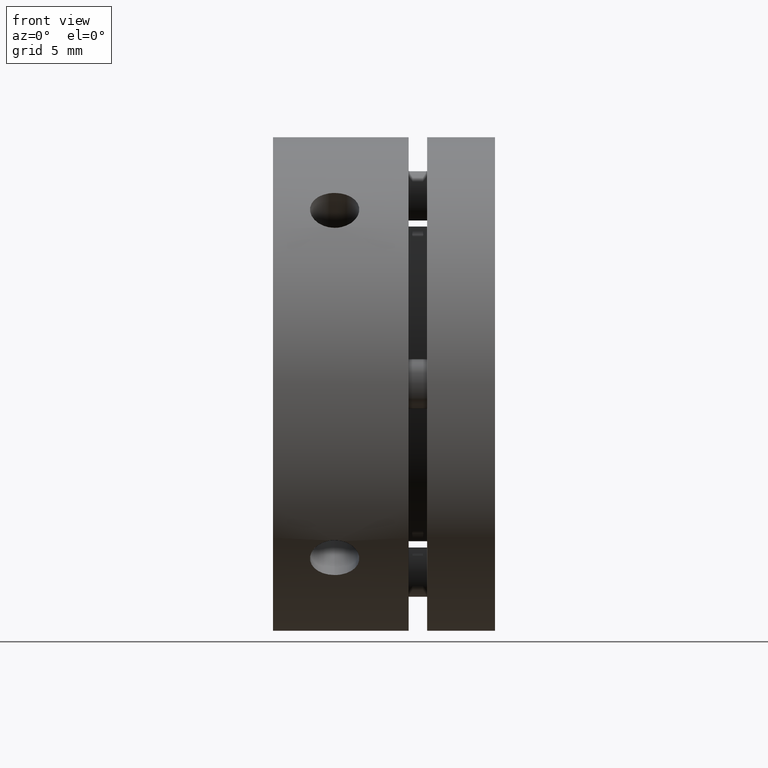
[diagram: clean part render]
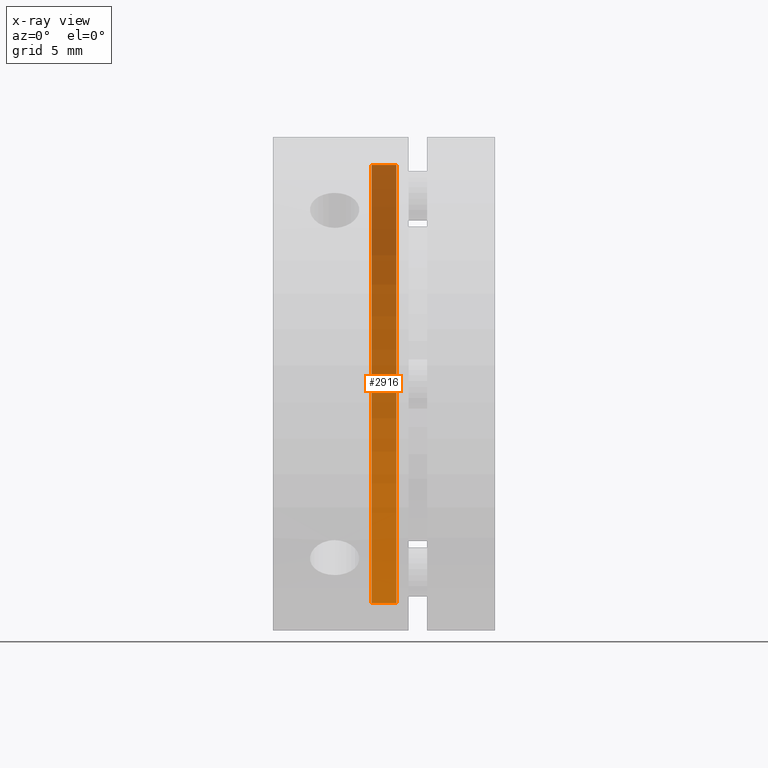
[diagram: x-ray — body ghosted, one internal face saturated and labeled with its STEP entity id]
A machine part, front view, then the same camera in x-ray: the body is ghosted and one INTERNAL B-rep face — a face not visible from any outside direction — is saturated and labeled: STEP entity #2916.
In plain terms, the highlighted cylindrical surface (partial cylindrical patch) has radius 17.75 mm, axis along (-1, 0, 0).
Its self-contained STEP definition (entity closure, byte-faithful):
#95 = CARTESIAN_POINT ( 'NONE',  ( 9.000000000000014200, 0.0000000000000000000, 0.0000000000000000000 ) ) ;
#96 = DIRECTION ( 'NONE',  ( 0.0000000000000000000, 0.0000000000000000000, 1.000000000000000000 ) ) ;
#97 = DIRECTION ( 'NONE',  ( -1.000000000000000000, 0.0000000000000000000, 0.0000000000000000000 ) ) ;
#230 = VERTEX_POINT ( 'NONE', #3264 ) ;
#232 = VERTEX_POINT ( 'NONE', #3260 ) ;
#234 = VERTEX_POINT ( 'NONE', #3250 ) ;
#247 = VERTEX_POINT ( 'NONE', #3274 ) ;
#416 = ORIENTED_EDGE ( 'NONE', *, *, #2232, .T. ) ;
#432 = ORIENTED_EDGE ( 'NONE', *, *, #623, .T. ) ;
#484 = ORIENTED_EDGE ( 'NONE', *, *, #624, .T. ) ;
#623 = EDGE_CURVE ( 'NONE', #247, #232, #2067, .T. ) ;
#624 = EDGE_CURVE ( 'NONE', #230, #234, #2068, .T. ) ;
#1732 = LINE ( 'NONE', #2118, #1734 ) ;
#1734 = VECTOR ( 'NONE', #2117, 1000.000000000000000 ) ;
#1736 = LINE ( 'NONE', #2096, #1739 ) ;
#1739 = VECTOR ( 'NONE', #2094, 1000.000000000000000 ) ;
#1781 = FACE_OUTER_BOUND ( 'NONE', #1955, .T. ) ;
#1790 = CYLINDRICAL_SURFACE ( 'NONE', #2377, 17.75000000000000400 ) ;
#1955 = EDGE_LOOP ( 'NONE', ( #3138, #432, #416, #484 ) ) ;
#2067 = CIRCLE ( 'NONE', #2272, 17.75000000000000400 ) ;
#2068 = CIRCLE ( 'NONE', #2273, 17.75000000000000400 ) ;
#2094 = DIRECTION ( 'NONE',  ( -1.000000000000000000, 0.0000000000000000000, 0.0000000000000000000 ) ) ;
#2096 = CARTESIAN_POINT ( 'NONE',  ( 9.000000000000014200, 2.173748068486552000E-015, -17.75000000000000400 ) ) ;
#2117 = DIRECTION ( 'NONE',  ( -1.000000000000000000, 0.0000000000000000000, 0.0000000000000000000 ) ) ;
#2118 = CARTESIAN_POINT ( 'NONE',  ( 9.000000000000014200, 0.0000000000000000000, 17.75000000000000400 ) ) ;
#2232 = EDGE_CURVE ( 'NONE', #232, #230, #1732, .T. ) ;
#2235 = EDGE_CURVE ( 'NONE', #247, #234, #1736, .T. ) ;
#2272 = AXIS2_PLACEMENT_3D ( 'NONE', #3456, #3457, #3459 ) ;
#2273 = AXIS2_PLACEMENT_3D ( 'NONE', #3461, #3462, #3463 ) ;
#2377 = AXIS2_PLACEMENT_3D ( 'NONE', #95, #97, #96 ) ;
#2916 = ADVANCED_FACE ( 'NONE', ( #1781 ), #1790, .F. ) ;
#3138 = ORIENTED_EDGE ( 'NONE', *, *, #2235, .F. ) ;
#3250 = CARTESIAN_POINT ( 'NONE',  ( 8.000000000000021300, 2.173748068486552000E-015, -17.75000000000000400 ) ) ;
#3260 = CARTESIAN_POINT ( 'NONE',  ( 10.00000000000000900, 0.0000000000000000000, 17.75000000000000400 ) ) ;
#3264 = CARTESIAN_POINT ( 'NONE',  ( 8.000000000000021300, 0.0000000000000000000, 17.75000000000000400 ) ) ;
#3274 = CARTESIAN_POINT ( 'NONE',  ( 10.00000000000000900, 2.173748068486552000E-015, -17.75000000000000400 ) ) ;
#3456 = CARTESIAN_POINT ( 'NONE',  ( 10.00000000000000900, 0.0000000000000000000, 0.0000000000000000000 ) ) ;
#3457 = DIRECTION ( 'NONE',  ( 1.000000000000000000, -0.0000000000000000000, -0.0000000000000000000 ) ) ;
#3459 = DIRECTION ( 'NONE',  ( 0.0000000000000000000, 0.0000000000000000000, 1.000000000000000000 ) ) ;
#3461 = CARTESIAN_POINT ( 'NONE',  ( 8.000000000000021300, 0.0000000000000000000, 0.0000000000000000000 ) ) ;
#3462 = DIRECTION ( 'NONE',  ( -1.000000000000000000, 0.0000000000000000000, 0.0000000000000000000 ) ) ;
#3463 = DIRECTION ( 'NONE',  ( 0.0000000000000000000, 0.0000000000000000000, 1.000000000000000000 ) ) ;